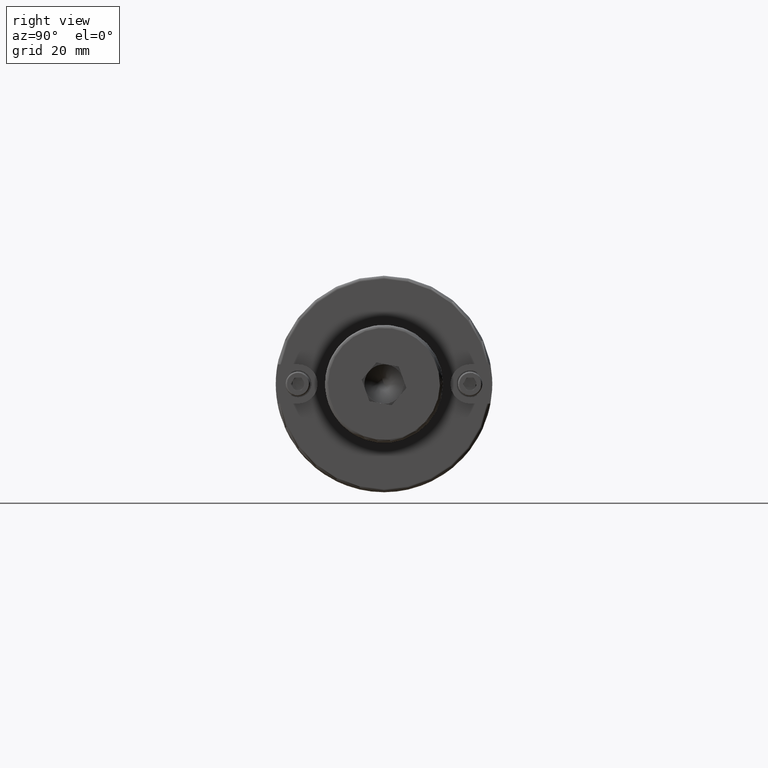
[diagram: clean part render]
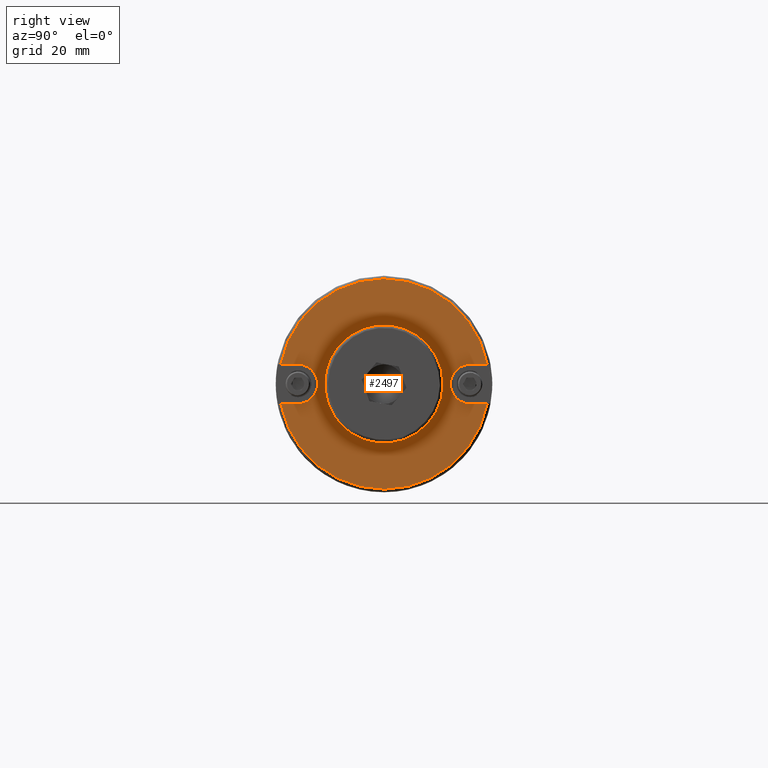
[diagram: same view with one face highlighted and labeled with its STEP entity id]
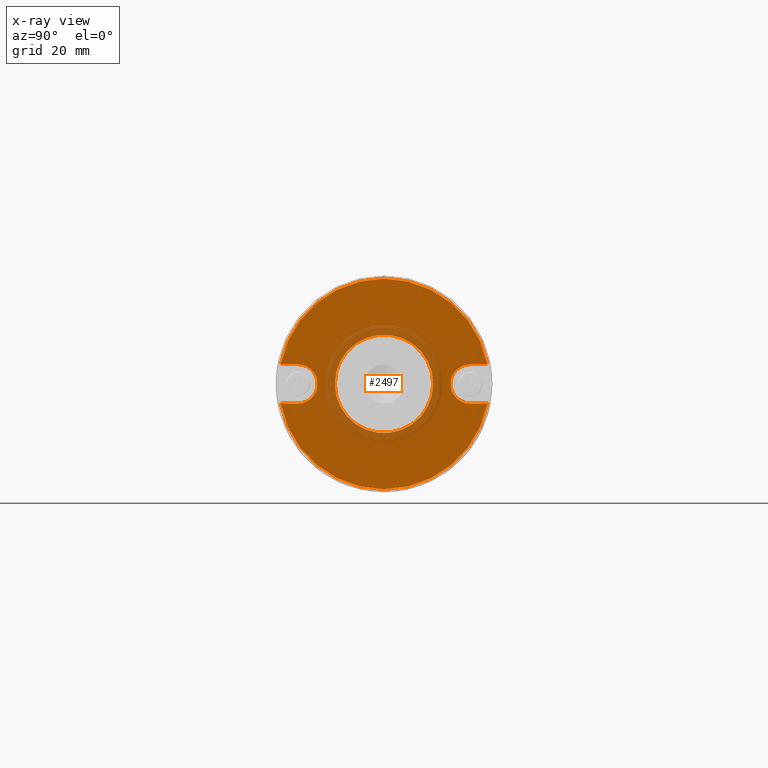
[diagram: x-ray of the same camera — body ghosted, the highlighted face saturated]
A machine part, right view. The second image highlights one B-rep face of the part: STEP entity #2497.
The next image is the same camera in x-ray: the body ghosted, the highlighted face saturated — about 14% of this face is hidden behind the body in this view.
In plain terms, the highlighted planar face has unit normal (1, 0, 0).
Its self-contained STEP definition (entity closure, byte-faithful):
#179=FACE_BOUND('',#514,.T.);
#204=CIRCLE('',#2735,6.35);
#210=CIRCLE('',#2744,33.925);
#211=CIRCLE('',#2746,33.925);
#215=CIRCLE('',#2755,6.35);
#232=CIRCLE('',#2783,15.875);
#359=FACE_OUTER_BOUND('',#513,.T.);
#513=EDGE_LOOP('',(#1778,#1779,#1780,#1781,#1782,#1783,#1784,#1785));
#514=EDGE_LOOP('',(#1786));
#658=LINE('',#3842,#819);
#667=LINE('',#3883,#828);
#673=LINE('',#3936,#834);
#678=LINE('',#3949,#839);
#819=VECTOR('',#3043,10.);
#828=VECTOR('',#3074,10.);
#834=VECTOR('',#3110,10.);
#839=VECTOR('',#3125,10.);
#1020=VERTEX_POINT('',#3829);
#1022=VERTEX_POINT('',#3841);
#1031=VERTEX_POINT('',#3866);
#1033=VERTEX_POINT('',#3871);
#1040=VERTEX_POINT('',#3900);
#1041=VERTEX_POINT('',#3913);
#1045=VERTEX_POINT('',#3935);
#1048=VERTEX_POINT('',#3945);
#1079=VERTEX_POINT('',#4178);
#1271=EDGE_CURVE('',#1022,#1020,#658,.T.);
#1283=EDGE_CURVE('',#1031,#1022,#204,.T.);
#1287=EDGE_CURVE('',#1033,#1031,#667,.T.);
#1296=EDGE_CURVE('',#1033,#1040,#210,.T.);
#1299=EDGE_CURVE('',#1041,#1020,#211,.T.);
#1304=EDGE_CURVE('',#1045,#1040,#673,.T.);
#1309=EDGE_CURVE('',#1048,#1045,#215,.T.);
#1311=EDGE_CURVE('',#1041,#1048,#678,.T.);
#1350=EDGE_CURVE('',#1079,#1079,#232,.T.);
#1778=ORIENTED_EDGE('',*,*,#1271,.T.);
#1779=ORIENTED_EDGE('',*,*,#1299,.F.);
#1780=ORIENTED_EDGE('',*,*,#1311,.T.);
#1781=ORIENTED_EDGE('',*,*,#1309,.T.);
#1782=ORIENTED_EDGE('',*,*,#1304,.T.);
#1783=ORIENTED_EDGE('',*,*,#1296,.F.);
#1784=ORIENTED_EDGE('',*,*,#1287,.T.);
#1785=ORIENTED_EDGE('',*,*,#1283,.T.);
#1786=ORIENTED_EDGE('',*,*,#1350,.F.);
#2411=PLANE('',#2782);
#2497=ADVANCED_FACE('',(#359,#179),#2411,.T.);
#2735=AXIS2_PLACEMENT_3D('',#3867,#3068,#3069);
#2744=AXIS2_PLACEMENT_3D('',#3901,#3092,#3093);
#2746=AXIS2_PLACEMENT_3D('',#3924,#3096,#3097);
#2755=AXIS2_PLACEMENT_3D('',#3946,#3120,#3121);
#2782=AXIS2_PLACEMENT_3D('',#4177,#3184,#3185);
#2783=AXIS2_PLACEMENT_3D('',#4179,#3186,#3187);
#3043=DIRECTION('',(0.,-1.,1.22464679914735E-16));
#3068=DIRECTION('center_axis',(-1.,0.,0.));
#3069=DIRECTION('ref_axis',(0.,-1.22464679914735E-16,-1.));
#3074=DIRECTION('',(0.,1.,-1.22464679914735E-16));
#3092=DIRECTION('center_axis',(-1.,0.,0.));
#3093=DIRECTION('ref_axis',(0.,-1.,1.83697019872103E-16));
#3096=DIRECTION('center_axis',(-1.,0.,0.));
#3097=DIRECTION('ref_axis',(0.,-1.,1.83697019872103E-16));
#3110=DIRECTION('',(0.,1.,0.));
#3120=DIRECTION('center_axis',(-1.,0.,0.));
#3121=DIRECTION('ref_axis',(0.,0.,1.));
#3125=DIRECTION('',(0.,-1.,0.));
#3184=DIRECTION('center_axis',(1.,0.,0.));
#3185=DIRECTION('ref_axis',(0.,0.,-1.));
#3186=DIRECTION('center_axis',(1.,0.,0.));
#3187=DIRECTION('ref_axis',(0.,0.,-1.));
#3829=CARTESIAN_POINT('',(101.6,-33.3254126005966,-6.35));
#3841=CARTESIAN_POINT('',(101.6,-27.775,-6.35));
#3842=CARTESIAN_POINT('',(101.6,-5.95,-6.35));
#3866=CARTESIAN_POINT('',(101.6,-27.775,6.35));
#3867=CARTESIAN_POINT('Origin',(101.6,-27.775,3.40145648463177E-15));
#3871=CARTESIAN_POINT('',(101.6,-33.3254126005966,6.35));
#3883=CARTESIAN_POINT('',(101.6,-12.025,6.35));
#3900=CARTESIAN_POINT('',(101.6,33.3254126005966,6.35));
#3901=CARTESIAN_POINT('Origin',(101.6,0.,0.));
#3913=CARTESIAN_POINT('',(101.6,33.3254126005966,-6.35));
#3924=CARTESIAN_POINT('Origin',(101.6,0.,0.));
#3935=CARTESIAN_POINT('',(101.6,27.775,6.35));
#3936=CARTESIAN_POINT('',(101.6,21.825,6.35));
#3945=CARTESIAN_POINT('',(101.6,27.775,-6.35));
#3946=CARTESIAN_POINT('Origin',(101.6,27.775,0.));
#3949=CARTESIAN_POINT('',(101.6,27.9,-6.35));
#4177=CARTESIAN_POINT('Origin',(101.6,15.875,0.));
#4178=CARTESIAN_POINT('',(101.6,-15.875,-1.94412679364642E-15));
#4179=CARTESIAN_POINT('Origin',(101.6,0.,0.));